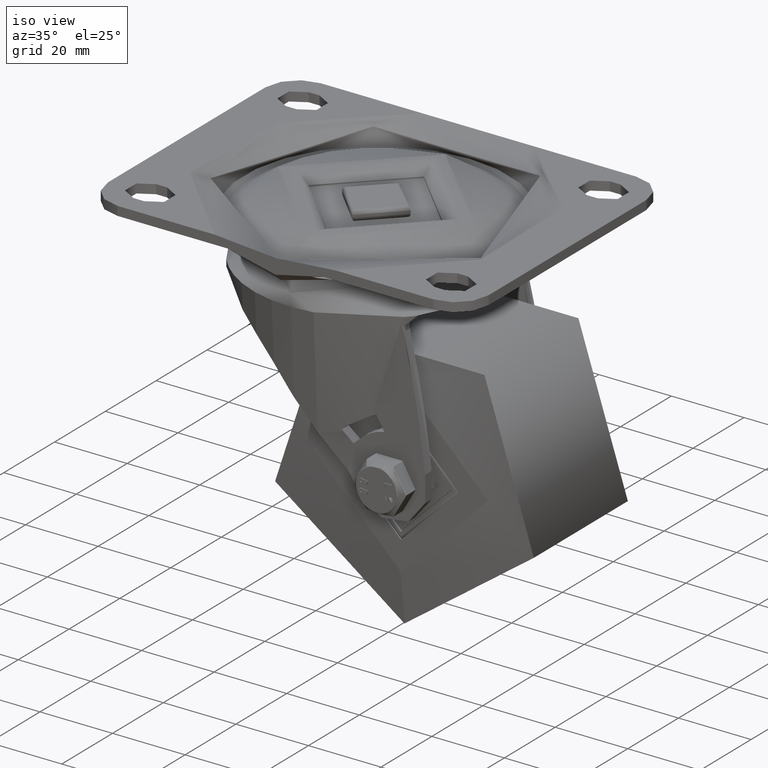
[diagram: clean part render]
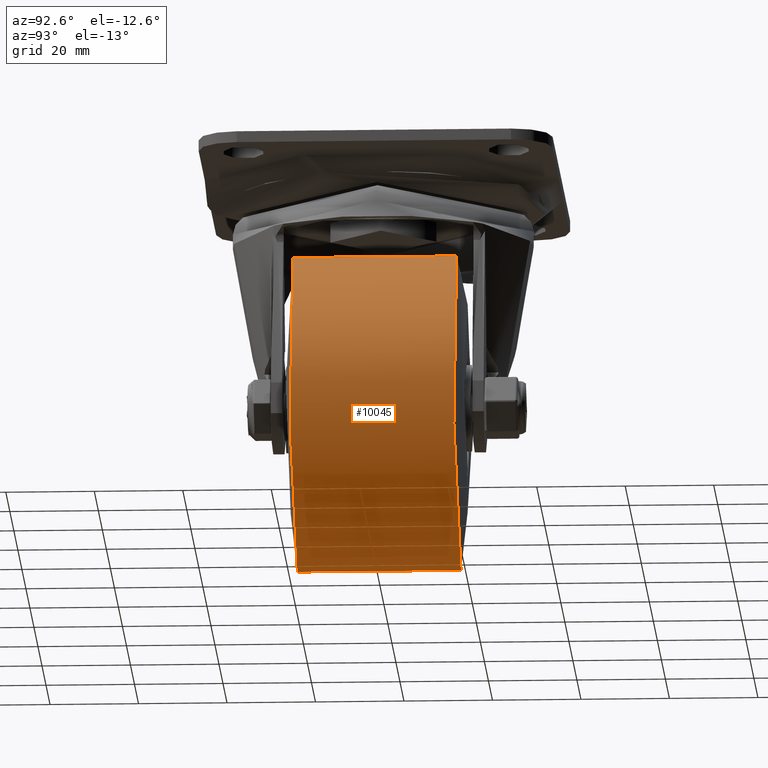
[diagram: tour spotlight — one face highlighted and labeled with its STEP entity id]
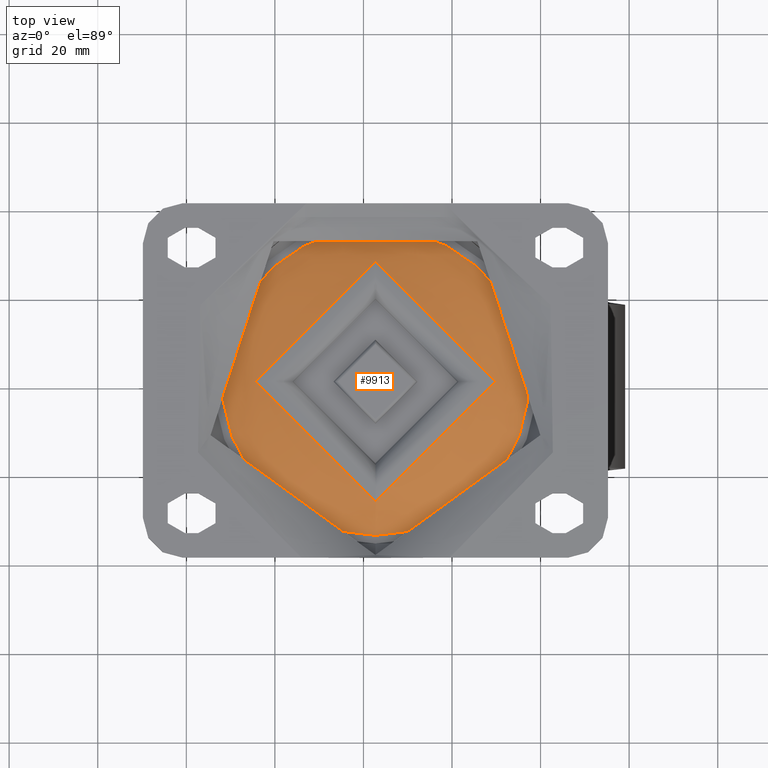
[diagram: tour spotlight — one face highlighted and labeled with its STEP entity id]
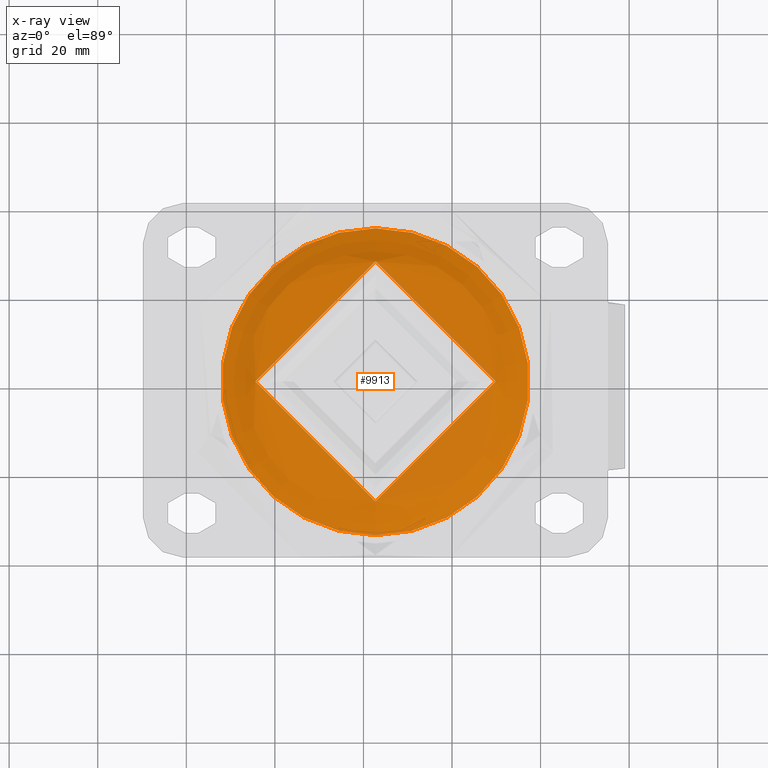
[diagram: x-ray of the same camera — body ghosted, this tour face saturated]
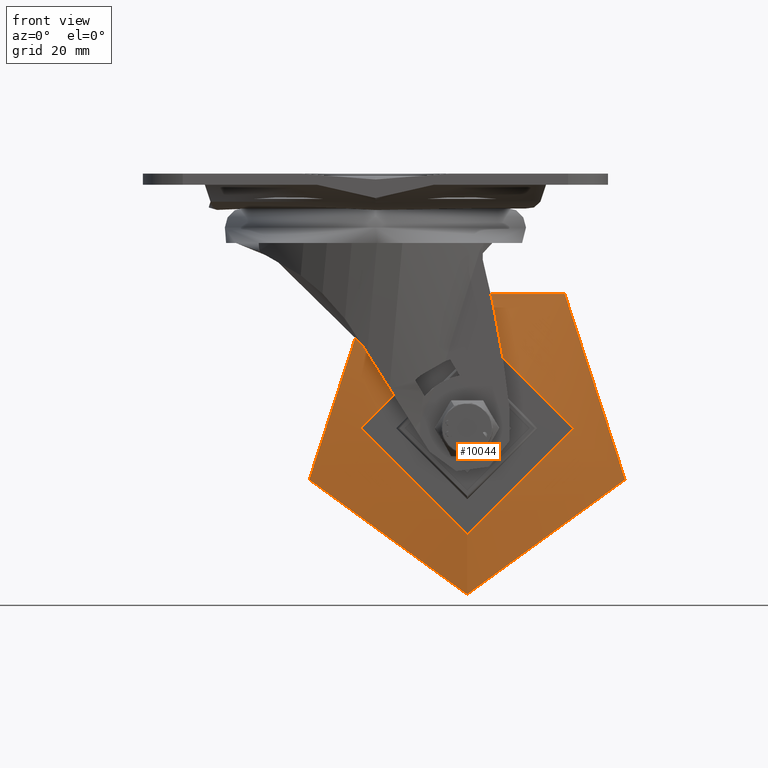
[diagram: tour spotlight — one face highlighted and labeled with its STEP entity id]
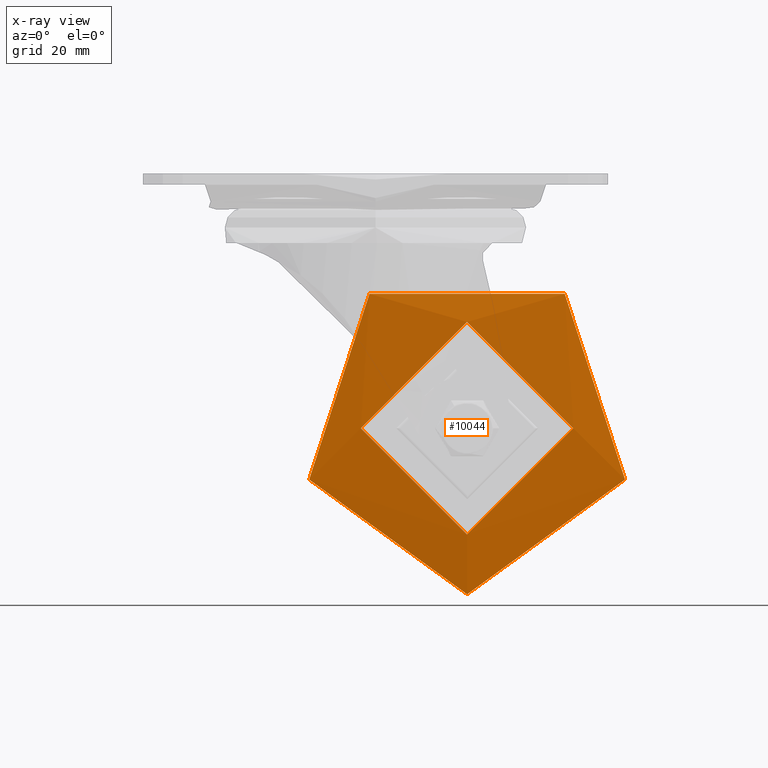
[diagram: x-ray of the same camera — body ghosted, this tour face saturated]
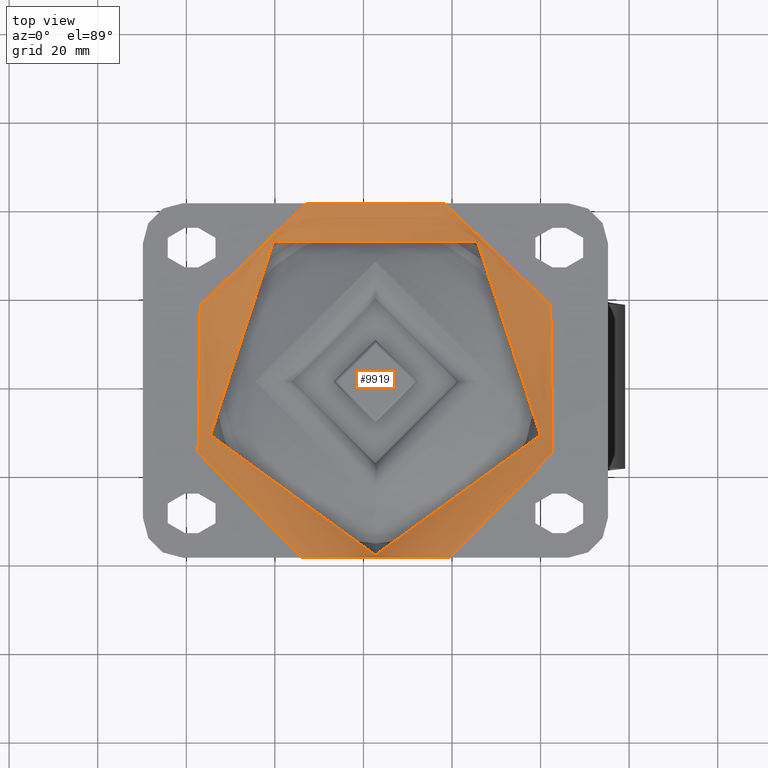
[diagram: tour spotlight — one face highlighted and labeled with its STEP entity id]
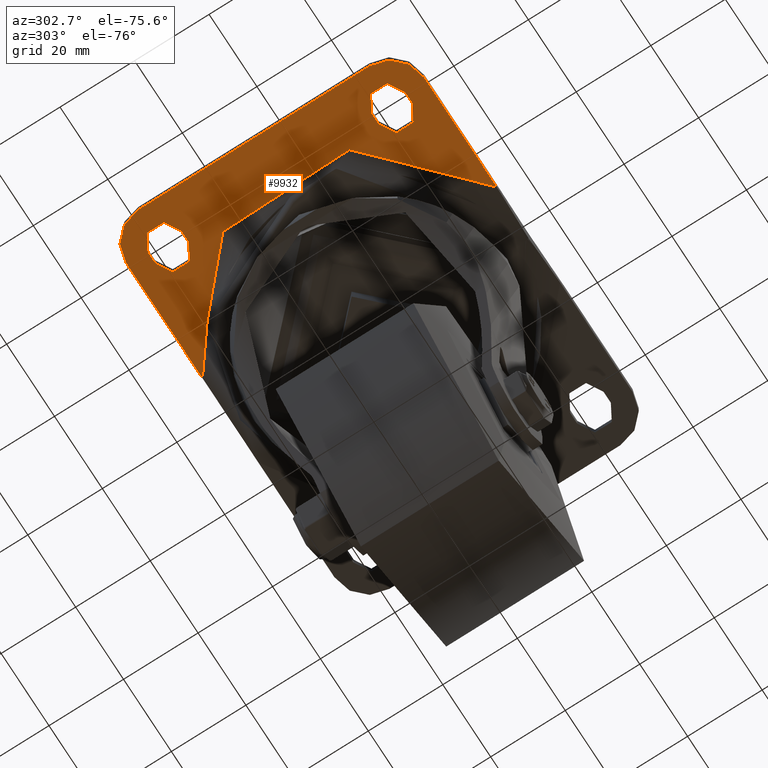
[diagram: tour spotlight — one face highlighted and labeled with its STEP entity id]
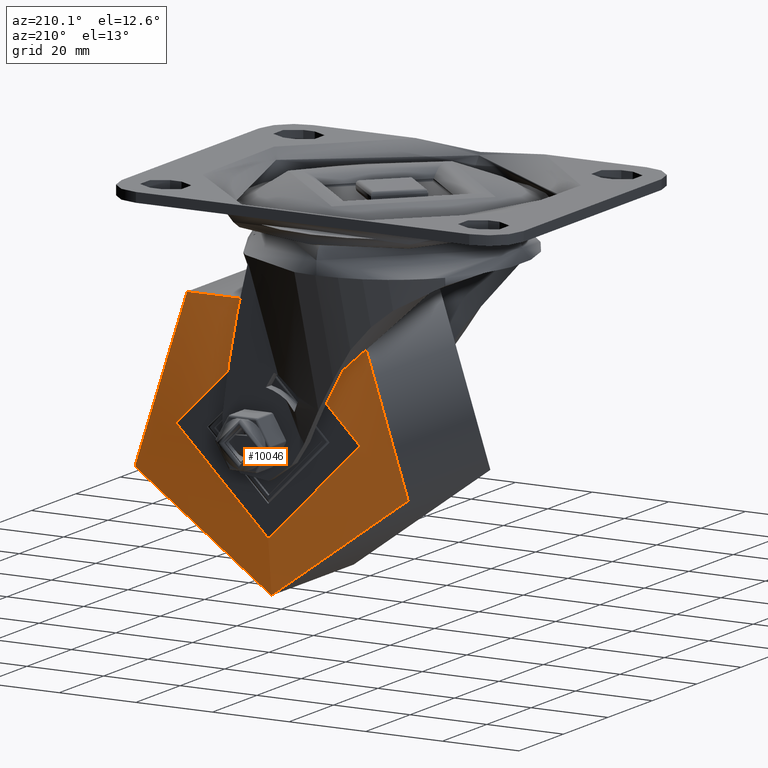
[diagram: tour spotlight — one face highlighted and labeled with its STEP entity id]
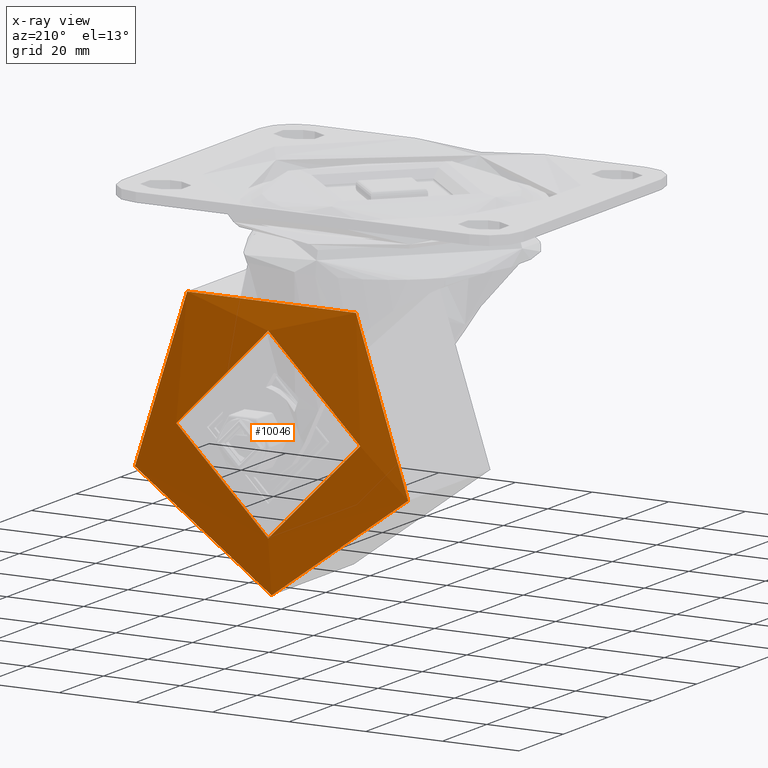
[diagram: x-ray of the same camera — body ghosted, this tour face saturated]
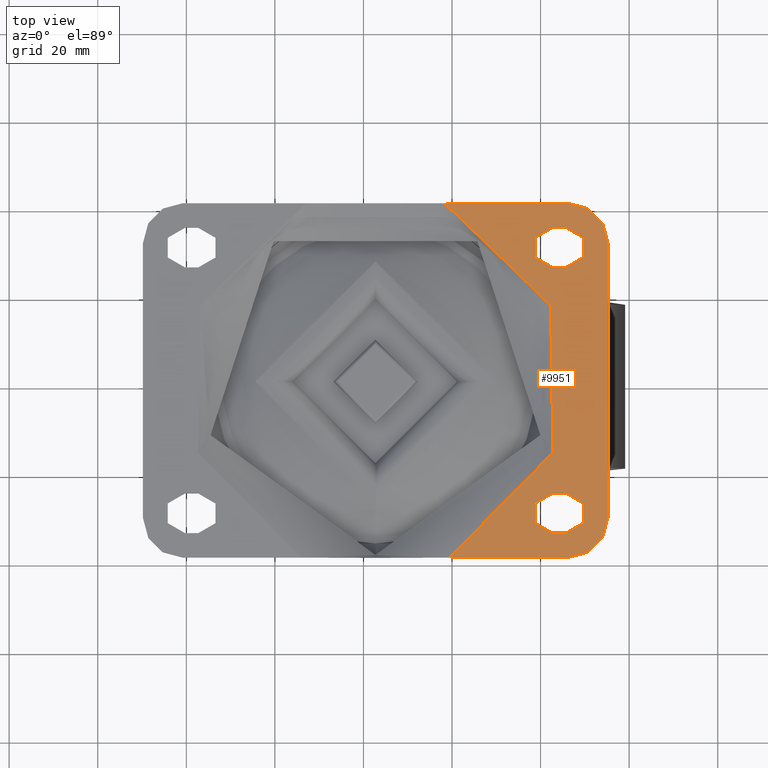
[diagram: tour spotlight — one face highlighted and labeled with its STEP entity id]
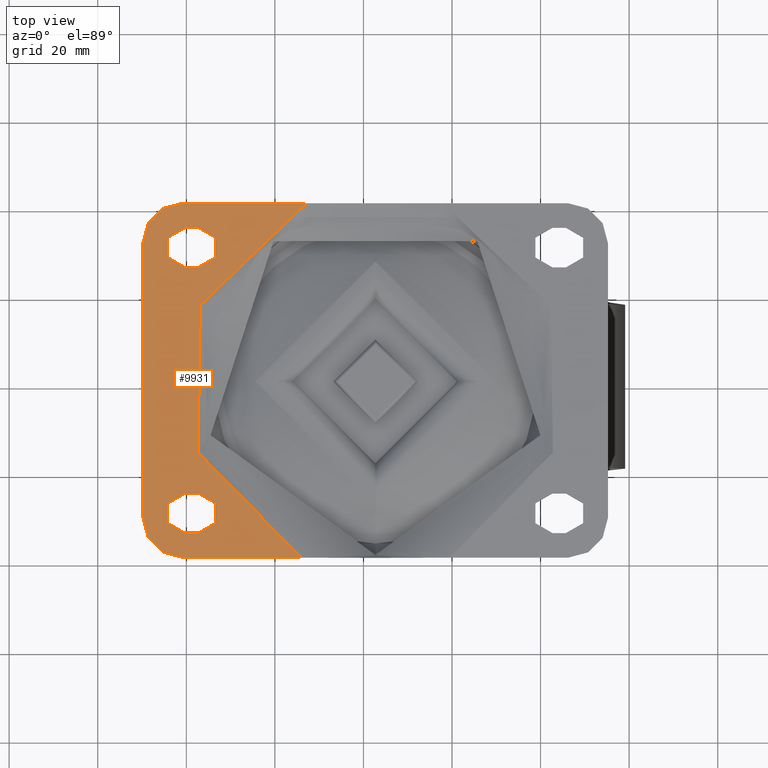
[diagram: tour spotlight — one face highlighted and labeled with its STEP entity id]
A machine part: a face-by-face anatomy tour. The part has 1127 B-rep faces; the first image is the clean iso view, then the 8 largest visible faces are spotlighted one at a time (largest first), each with its STEP entity span.

Face 1 — auxiliary view, entity #10045. In plain terms, the highlighted cylindrical surface (bore or boss wall) has radius 37.5 mm, axis along (0, -1, -0).
Definition (entity closure, byte-faithful):
#1291=CYLINDRICAL_SURFACE('',#10992,37.5);
#1587=LINE('',#16433,#2146);
#2146=VECTOR('',#12498,37.5);
#2705=FACE_OUTER_BOUND('',#3339,.T.);
#3339=EDGE_LOOP('',(#7611,#7612,#7613,#7614));
#4027=CIRCLE('',#10990,37.5);
#4029=CIRCLE('',#10993,37.5);
#4629=VERTEX_POINT('',#16426);
#4631=VERTEX_POINT('',#16432);
#5728=EDGE_CURVE('',#4629,#4629,#4027,.T.);
#5731=EDGE_CURVE('',#4629,#4631,#1587,.T.);
#5732=EDGE_CURVE('',#4631,#4631,#4029,.T.);
#7611=ORIENTED_EDGE('',*,*,#5728,.F.);
#7612=ORIENTED_EDGE('',*,*,#5731,.T.);
#7613=ORIENTED_EDGE('',*,*,#5732,.T.);
#7614=ORIENTED_EDGE('',*,*,#5731,.F.);
#10045=ADVANCED_FACE('',(#2705),#1291,.T.);
#10990=AXIS2_PLACEMENT_3D('',#16427,#12491,#12492);
#10992=AXIS2_PLACEMENT_3D('',#16431,#12496,#12497);
#10993=AXIS2_PLACEMENT_3D('',#16434,#12499,#12500);
#12491=DIRECTION('center_axis',(0.,-1.,0.));
#12492=DIRECTION('ref_axis',(0.,0.,1.));
#12496=DIRECTION('center_axis',(0.,-1.,0.));
#12497=DIRECTION('ref_axis',(0.,0.,1.));
#12498=DIRECTION('',(0.,1.,0.));
#12499=DIRECTION('center_axis',(0.,-1.,0.));
#12500=DIRECTION('ref_axis',(0.,0.,1.));
#16426=CARTESIAN_POINT('',(-4.59242549680257E-15,-18.5,-37.5));
#16427=CARTESIAN_POINT('Origin',(0.,-18.5,0.));
#16431=CARTESIAN_POINT('Origin',(0.,0.,0.));
#16432=CARTESIAN_POINT('',(-4.59242549680257E-15,18.5,-37.5));
#16433=CARTESIAN_POINT('',(4.59242549680258E-15,0.,-37.5));
#16434=CARTESIAN_POINT('Origin',(0.,18.5,0.));

Face 2 — top view, entity #9913. An x-ray twin of the same camera follows (body ghosted, this face saturated) — the face is partly hidden behind the body. In plain terms, the highlighted toroidal blend (fillet) surface has major radius 45.2685 mm and minor (blend) radius 27.7043 mm.
Definition (entity closure, byte-faithful):
#2573=FACE_OUTER_BOUND('',#3185,.T.);
#3185=EDGE_LOOP('',(#6891,#6892,#6893,#6894));
#3906=CIRCLE('',#10736,27.0902471570553);
#3907=CIRCLE('',#10737,27.704341700969);
#3908=CIRCLE('',#10738,34.6679245118185);
#4396=VERTEX_POINT('',#14523);
#4397=VERTEX_POINT('',#14525);
#5372=EDGE_CURVE('',#4396,#4396,#3906,.T.);
#5373=EDGE_CURVE('',#4396,#4397,#3907,.T.);
#5374=EDGE_CURVE('',#4397,#4397,#3908,.T.);
#6891=ORIENTED_EDGE('',*,*,#5372,.F.);
#6892=ORIENTED_EDGE('',*,*,#5373,.T.);
#6893=ORIENTED_EDGE('',*,*,#5374,.T.);
#6894=ORIENTED_EDGE('',*,*,#5373,.F.);
#9890=TOROIDAL_SURFACE('',#10735,45.2685483574106,27.704341700969);
#9913=ADVANCED_FACE('',(#2573),#9890,.F.);
#10735=AXIS2_PLACEMENT_3D('',#14522,#11831,#11832);
#10736=AXIS2_PLACEMENT_3D('',#14524,#11833,#11834);
#10737=AXIS2_PLACEMENT_3D('',#14526,#11835,#11836);
#10738=AXIS2_PLACEMENT_3D('',#14527,#11837,#11838);
#11831=DIRECTION('center_axis',(0.,0.,1.));
#11832=DIRECTION('ref_axis',(1.,0.,0.));
#11833=DIRECTION('center_axis',(0.,0.,1.));
#11834=DIRECTION('ref_axis',(1.,0.,0.));
#11835=DIRECTION('center_axis',(0.,1.,0.));
#11836=DIRECTION('ref_axis',(-1.,0.,0.));
#11837=DIRECTION('center_axis',(0.,0.,1.));
#11838=DIRECTION('ref_axis',(1.,0.,0.));
#14522=CARTESIAN_POINT('Origin',(568.740824994599,-462.775587103942,19.8960411620295));
#14523=CARTESIAN_POINT('',(541.650577837544,-462.775587103942,-1.01041512671561));
#14524=CARTESIAN_POINT('Origin',(568.740824994599,-462.775587103942,-1.01041512671561));
#14525=CARTESIAN_POINT('',(534.072900482781,-462.775587103942,-5.70000000000005));
#14526=CARTESIAN_POINT('Origin',(523.472276637188,-462.775587103942,19.8960411620295));
#14527=CARTESIAN_POINT('Origin',(568.740824994599,-462.775587103942,-5.70000000000005));

Face 3 — front view, entity #10044. An x-ray twin of the same camera follows (body ghosted, this face saturated) — the face is partly hidden behind the body. In plain terms, the highlighted conical surface has half-angle 83.66 deg.
Definition (entity closure, byte-faithful):
#1586=LINE('',#16429,#2145);
#2145=VECTOR('',#12493,30.75);
#2555=CONICAL_SURFACE('',#10989,30.75,1.460139105621);
#2704=FACE_OUTER_BOUND('',#3338,.T.);
#3338=EDGE_LOOP('',(#7607,#7608,#7609,#7610));
#4027=CIRCLE('',#10990,37.5);
#4028=CIRCLE('',#10991,24.);
#4629=VERTEX_POINT('',#16426);
#4630=VERTEX_POINT('',#16428);
#5728=EDGE_CURVE('',#4629,#4629,#4027,.T.);
#5729=EDGE_CURVE('',#4629,#4630,#1586,.T.);
#5730=EDGE_CURVE('',#4630,#4630,#4028,.T.);
#7607=ORIENTED_EDGE('',*,*,#5728,.T.);
#7608=ORIENTED_EDGE('',*,*,#5729,.T.);
#7609=ORIENTED_EDGE('',*,*,#5730,.F.);
#7610=ORIENTED_EDGE('',*,*,#5729,.F.);
#10044=ADVANCED_FACE('',(#2704),#2555,.T.);
#10989=AXIS2_PLACEMENT_3D('',#16425,#12489,#12490);
#10990=AXIS2_PLACEMENT_3D('',#16427,#12491,#12492);
#10991=AXIS2_PLACEMENT_3D('',#16430,#12494,#12495);
#12489=DIRECTION('center_axis',(0.,1.,0.));
#12490=DIRECTION('ref_axis',(0.,0.,1.));
#12491=DIRECTION('center_axis',(0.,-1.,0.));
#12492=DIRECTION('ref_axis',(0.,0.,1.));
#12493=DIRECTION('',(1.21715653439266E-16,-0.110431526074847,0.993883734673619));
#12494=DIRECTION('center_axis',(0.,-1.,0.));
#12495=DIRECTION('ref_axis',(0.,0.,1.));
#16425=CARTESIAN_POINT('Origin',(0.,-19.25,0.));
#16426=CARTESIAN_POINT('',(-4.59242549680257E-15,-18.5,-37.5));
#16427=CARTESIAN_POINT('Origin',(0.,-18.5,0.));
#16428=CARTESIAN_POINT('',(-2.93915231795365E-15,-20.,-24.));
#16429=CARTESIAN_POINT('',(-3.76578890737811E-15,-19.25,-30.75));
#16430=CARTESIAN_POINT('Origin',(0.,-20.,0.));

Face 4 — top view, entity #9919. In plain terms, the highlighted toroidal blend (fillet) surface has major radius 43.1485 mm and minor (blend) radius 5 mm.
Definition (entity closure, byte-faithful):
#813=B_SPLINE_CURVE_WITH_KNOTS('',3,(#14568,#14569,#14570,#14571,#14572,
#14573,#14574,#14575),.UNSPECIFIED.,.F.,.F.,(4,2,2,4),(-7.10806335911513,
-6.59290591768846,-6.06111245325113,-5.52931898881379),.UNSPECIFIED.);
#814=B_SPLINE_CURVE_WITH_KNOTS('',3,(#14579,#14580,#14581,#14582,#14583,
#14584,#14585,#14586,#14587,#14588,#14589,#14590,#14591,#14592),
 .UNSPECIFIED.,.F.,.F.,(4,2,2,2,2,2,4),(3.91852567269638,4.38247986665139,
4.88250855631407,5.38253724597674,5.88256593563942,6.38259462530209,6.84654881925711),
 .UNSPECIFIED.);
#815=B_SPLINE_CURVE_WITH_KNOTS('',3,(#14595,#14596,#14597,#14598,#14599,
#14600,#14601,#14602),.UNSPECIFIED.,.F.,.F.,(4,2,2,4),(-5.52931898881379,
-4.99752552437645,-4.46573205993912,-3.95057461851246),.UNSPECIFIED.);
#2579=FACE_OUTER_BOUND('',#3191,.T.);
#3191=EDGE_LOOP('',(#6919,#6920,#6921,#6922,#6923,#6924,#6925,#6926));
#3905=CIRCLE('',#10734,39.1513501417062);
#3918=CIRCLE('',#10754,4.99999999999997);
#3919=CIRCLE('',#10755,43.1485350824886);
#3920=CIRCLE('',#10756,43.1485350824886);
#4395=VERTEX_POINT('',#14519);
#4408=VERTEX_POINT('',#14565);
#4409=VERTEX_POINT('',#14567);
#4410=VERTEX_POINT('',#14576);
#4411=VERTEX_POINT('',#14578);
#4412=VERTEX_POINT('',#14593);
#5371=EDGE_CURVE('',#4395,#4395,#3905,.T.);
#5390=EDGE_CURVE('',#4395,#4408,#3918,.T.);
#5391=EDGE_CURVE('',#4409,#4408,#813,.T.);
#5392=EDGE_CURVE('',#4409,#4410,#3919,.T.);
#5393=EDGE_CURVE('',#4411,#4410,#814,.F.);
#5394=EDGE_CURVE('',#4412,#4411,#3920,.T.);
#5395=EDGE_CURVE('',#4408,#4412,#815,.T.);
#6919=ORIENTED_EDGE('',*,*,#5371,.F.);
#6920=ORIENTED_EDGE('',*,*,#5390,.T.);
#6921=ORIENTED_EDGE('',*,*,#5391,.F.);
#6922=ORIENTED_EDGE('',*,*,#5392,.T.);
#6923=ORIENTED_EDGE('',*,*,#5393,.F.);
#6924=ORIENTED_EDGE('',*,*,#5394,.F.);
#6925=ORIENTED_EDGE('',*,*,#5395,.F.);
#6926=ORIENTED_EDGE('',*,*,#5390,.F.);
#9893=TOROIDAL_SURFACE('',#10753,43.1485350824886,4.99999999999997);
#9919=ADVANCED_FACE('',(#2579),#9893,.T.);
#10734=AXIS2_PLACEMENT_3D('',#14521,#11829,#11830);
#10753=AXIS2_PLACEMENT_3D('',#14564,#11870,#11871);
#10754=AXIS2_PLACEMENT_3D('',#14566,#11872,#11873);
#10755=AXIS2_PLACEMENT_3D('',#14577,#11874,#11875);
#10756=AXIS2_PLACEMENT_3D('',#14594,#11876,#11877);
#11829=DIRECTION('center_axis',(0.,0.,1.));
#11830=DIRECTION('ref_axis',(1.,0.,0.));
#11870=DIRECTION('center_axis',(0.,0.,1.));
#11871=DIRECTION('ref_axis',(1.,0.,0.));
#11872=DIRECTION('center_axis',(0.,-1.,0.));
#11873=DIRECTION('ref_axis',(-1.,0.,0.));
#11874=DIRECTION('center_axis',(0.,0.,1.));
#11875=DIRECTION('ref_axis',(1.,0.,0.));
#11876=DIRECTION('center_axis',(0.,0.,-1.));
#11877=DIRECTION('ref_axis',(-1.,0.,0.));
#14519=CARTESIAN_POINT('',(529.589474852893,-462.775587103942,-1.99625025190482));
#14521=CARTESIAN_POINT('Origin',(568.740824994599,-462.775587103942,-1.99625025190482));
#14564=CARTESIAN_POINT('Origin',(568.740824994599,-462.775587103942,-5.00000000000012));
#14565=CARTESIAN_POINT('',(528.98065425484,-462.775587103942,-1.32318247924681));
#14566=CARTESIAN_POINT('Origin',(525.59228991211,-462.775587103942,-5.00000000000012));
#14567=CARTESIAN_POINT('',(528.98065425484,-479.536401598171,-1.14491749414469E-13));
#14568=CARTESIAN_POINT('Ctrl Pts',(528.98065425484,-479.536401598171,-1.49880108324396E-13));
#14569=CARTESIAN_POINT('Ctrl Pts',(528.98065425484,-477.819210126749,-1.48654374385286E-13));
#14570=CARTESIAN_POINT('Ctrl Pts',(528.98065425484,-475.764841449988,-0.160512838297767));
#14571=CARTESIAN_POINT('Ctrl Pts',(528.98065425484,-472.294664874623,-0.530421348165077));
#14572=CARTESIAN_POINT('Ctrl Pts',(528.98065425484,-470.361913953468,-0.788579001646508));
#14573=CARTESIAN_POINT('Ctrl Pts',(528.98065425484,-466.489719236222,-1.19481938771826));
#14574=CARTESIAN_POINT('Ctrl Pts',(528.98065425484,-464.5482319854,-1.32318247924681));
#14575=CARTESIAN_POINT('Ctrl Pts',(528.98065425484,-462.775587103942,-1.32318247924681));
#14576=CARTESIAN_POINT('',(608.98065425484,-478.349675227213,-1.14491749414469E-13));
#14577=CARTESIAN_POINT('Origin',(568.740824994599,-462.775587103942,-1.13624387676481E-13));
#14578=CARTESIAN_POINT('',(608.98065425484,-447.201498980672,-1.14491749414469E-13));
#14579=CARTESIAN_POINT('Ctrl Pts',(608.98065425484,-478.349675227213,-1.49880108324396E-13));
#14580=CARTESIAN_POINT('Ctrl Pts',(608.98065425484,-476.803161247363,-1.52659462299012E-13));
#14581=CARTESIAN_POINT('Ctrl Pts',(608.98065425484,-474.950767284053,-0.112661040784901));
#14582=CARTESIAN_POINT('Ctrl Pts',(608.98065425484,-471.748230221187,-0.37515066798583));
#14583=CARTESIAN_POINT('Ctrl Pts',(608.98065425484,-469.924145968375,-0.561432565811661));
#14584=CARTESIAN_POINT('Ctrl Pts',(608.98065425484,-466.271685029772,-0.846630739842544));
#14585=CARTESIAN_POINT('Ctrl Pts',(608.98065425484,-464.442349402818,-0.933130142281186));
#14586=CARTESIAN_POINT('Ctrl Pts',(608.98065425484,-461.108824805066,-0.933130142281186));
#14587=CARTESIAN_POINT('Ctrl Pts',(608.98065425484,-459.279489178112,-0.846630739842544));
#14588=CARTESIAN_POINT('Ctrl Pts',(608.98065425484,-455.62702823951,-0.561432565811662));
#14589=CARTESIAN_POINT('Ctrl Pts',(608.98065425484,-453.802943986697,-0.37515066798583));
#14590=CARTESIAN_POINT('Ctrl Pts',(608.98065425484,-450.600406923831,-0.112661040784901));
#14591=CARTESIAN_POINT('Ctrl Pts',(608.98065425484,-448.748012960521,-1.49880108324396E-13));
#14592=CARTESIAN_POINT('Ctrl Pts',(608.98065425484,-447.201498980671,-1.49880108324396E-13));
#14593=CARTESIAN_POINT('',(528.98065425484,-446.014772609713,-1.14491749414469E-13));
#14594=CARTESIAN_POINT('Origin',(568.740824994599,-462.775587103942,-1.14491749414469E-13));
#14595=CARTESIAN_POINT('Ctrl Pts',(528.98065425484,-462.775587103942,-1.32318247924681));
#14596=CARTESIAN_POINT('Ctrl Pts',(528.98065425484,-461.002942222484,-1.32318247924681));
#14597=CARTESIAN_POINT('Ctrl Pts',(528.98065425484,-459.061454971662,-1.19481938771826));
#14598=CARTESIAN_POINT('Ctrl Pts',(528.98065425484,-455.189260254416,-0.788579001646508));
#14599=CARTESIAN_POINT('Ctrl Pts',(528.98065425484,-453.256509333261,-0.530421348165077));
#14600=CARTESIAN_POINT('Ctrl Pts',(528.98065425484,-449.786332757896,-0.160512838297767));
#14601=CARTESIAN_POINT('Ctrl Pts',(528.98065425484,-447.731964081135,-1.48354935916986E-13));
#14602=CARTESIAN_POINT('Ctrl Pts',(528.98065425484,-446.014772609713,-1.49880108324396E-13));

Face 5 — auxiliary view, entity #9932. In plain terms, the highlighted planar face has unit normal (-0, 0, -1).
Definition (entity closure, byte-faithful):
#498=FACE_BOUND('',#3207,.T.);
#499=FACE_BOUND('',#3208,.T.);
#604=PLANE('',#10781);
#1441=LINE('',#14610,#2000);
#1446=LINE('',#14623,#2005);
#1449=LINE('',#14634,#2008);
#1454=LINE('',#14647,#2013);
#1459=LINE('',#14665,#2018);
#1463=LINE('',#14676,#2022);
#1464=LINE('',#14677,#2023);
#2000=VECTOR('',#11882,1.);
#2005=VECTOR('',#11895,1.);
#2008=VECTOR('',#11906,1.);
#2013=VECTOR('',#11919,1.);
#2018=VECTOR('',#11938,1.);
#2022=VECTOR('',#11952,1.);
#2023=VECTOR('',#11953,1.);
#2592=FACE_OUTER_BOUND('',#3206,.T.);
#3206=EDGE_LOOP('',(#6985,#6986,#6987,#6988,#6989,#6990));
#3207=EDGE_LOOP('',(#6991,#6992,#6993,#6994));
#3208=EDGE_LOOP('',(#6995,#6996,#6997,#6998));
#3916=CIRCLE('',#10751,41.9);
#3922=CIRCLE('',#10760,4.5);
#3924=CIRCLE('',#10764,4.5);
#3926=CIRCLE('',#10768,4.5);
#3928=CIRCLE('',#10772,4.5);
#3930=CIRCLE('',#10775,9.);
#3932=CIRCLE('',#10779,9.);
#4403=VERTEX_POINT('',#14547);
#4405=VERTEX_POINT('',#14552);
#4415=VERTEX_POINT('',#14607);
#4416=VERTEX_POINT('',#14609);
#4418=VERTEX_POINT('',#14615);
#4420=VERTEX_POINT('',#14621);
#4423=VERTEX_POINT('',#14631);
#4424=VERTEX_POINT('',#14633);
#4426=VERTEX_POINT('',#14639);
#4428=VERTEX_POINT('',#14645);
#4431=VERTEX_POINT('',#14655);
#4432=VERTEX_POINT('',#14657);
#4434=VERTEX_POINT('',#14663);
#4436=VERTEX_POINT('',#14669);
#5385=EDGE_CURVE('',#4405,#4403,#3916,.T.);
#5398=EDGE_CURVE('',#4415,#4416,#1441,.T.);
#5402=EDGE_CURVE('',#4418,#4415,#3922,.T.);
#5405=EDGE_CURVE('',#4420,#4418,#1446,.T.);
#5407=EDGE_CURVE('',#4416,#4420,#3924,.T.);
#5410=EDGE_CURVE('',#4423,#4424,#1449,.T.);
#5414=EDGE_CURVE('',#4426,#4423,#3926,.T.);
#5417=EDGE_CURVE('',#4428,#4426,#1454,.T.);
#5419=EDGE_CURVE('',#4424,#4428,#3928,.T.);
#5422=EDGE_CURVE('',#4432,#4431,#3930,.T.);
#5426=EDGE_CURVE('',#4431,#4434,#1459,.T.);
#5429=EDGE_CURVE('',#4434,#4436,#3932,.T.);
#5432=EDGE_CURVE('',#4436,#4405,#1463,.T.);
#5433=EDGE_CURVE('',#4403,#4432,#1464,.T.);
#6985=ORIENTED_EDGE('',*,*,#5432,.T.);
#6986=ORIENTED_EDGE('',*,*,#5385,.T.);
#6987=ORIENTED_EDGE('',*,*,#5433,.T.);
#6988=ORIENTED_EDGE('',*,*,#5422,.T.);
#6989=ORIENTED_EDGE('',*,*,#5426,.T.);
#6990=ORIENTED_EDGE('',*,*,#5429,.T.);
#6991=ORIENTED_EDGE('',*,*,#5419,.F.);
#6992=ORIENTED_EDGE('',*,*,#5410,.F.);
#6993=ORIENTED_EDGE('',*,*,#5414,.F.);
#6994=ORIENTED_EDGE('',*,*,#5417,.F.);
#6995=ORIENTED_EDGE('',*,*,#5407,.F.);
#6996=ORIENTED_EDGE('',*,*,#5398,.F.);
#6997=ORIENTED_EDGE('',*,*,#5402,.F.);
#6998=ORIENTED_EDGE('',*,*,#5405,.F.);
#9932=ADVANCED_FACE('',(#2592,#498,#499),#604,.T.);
#10751=AXIS2_PLACEMENT_3D('',#14553,#11865,#11866);
#10760=AXIS2_PLACEMENT_3D('',#14617,#11889,#11890);
#10764=AXIS2_PLACEMENT_3D('',#14626,#11900,#11901);
#10768=AXIS2_PLACEMENT_3D('',#14641,#11913,#11914);
#10772=AXIS2_PLACEMENT_3D('',#14650,#11924,#11925);
#10775=AXIS2_PLACEMENT_3D('',#14658,#11931,#11932);
#10779=AXIS2_PLACEMENT_3D('',#14671,#11944,#11945);
#10781=AXIS2_PLACEMENT_3D('',#14675,#11950,#11951);
#11865=DIRECTION('center_axis',(0.,0.,1.));
#11866=DIRECTION('ref_axis',(1.,0.,0.));
#11882=DIRECTION('',(0.,1.,0.));
#11889=DIRECTION('center_axis',(0.,0.,-1.));
#11890=DIRECTION('ref_axis',(1.,0.,0.));
#11895=DIRECTION('',(0.,-1.,0.));
#11900=DIRECTION('center_axis',(0.,0.,-1.));
#11901=DIRECTION('ref_axis',(1.,0.,0.));
#11906=DIRECTION('',(0.,1.,0.));
#11913=DIRECTION('center_axis',(0.,0.,-1.));
#11914=DIRECTION('ref_axis',(1.,0.,0.));
#11919=DIRECTION('',(0.,-1.,0.));
#11924=DIRECTION('center_axis',(0.,0.,-1.));
#11925=DIRECTION('ref_axis',(1.,0.,0.));
#11931=DIRECTION('center_axis',(0.,0.,-1.));
#11932=DIRECTION('ref_axis',(1.,0.,0.));
#11938=DIRECTION('',(1.,1.79068229778251E-15,0.));
#11944=DIRECTION('center_axis',(0.,0.,-1.));
#11945=DIRECTION('ref_axis',(1.,0.,0.));
#11950=DIRECTION('center_axis',(0.,0.,-1.));
#11951=DIRECTION('ref_axis',(0.,-1.,0.));
#11952=DIRECTION('',(0.,-1.,0.));
#11953=DIRECTION('',(0.,1.,0.));
#14547=CARTESIAN_POINT('',(528.980654255396,-449.556705808012,-2.49999999851909));
#14552=CARTESIAN_POINT('',(608.980654254329,-451.097995696732,-2.49999999848761));
#14553=CARTESIAN_POINT('Origin',(568.740824994599,-462.775587103942,-2.50000000000011));
#14607=CARTESIAN_POINT('',(534.48065425484,-422.775587103942,-2.50000000000011));
#14609=CARTESIAN_POINT('',(534.48065425484,-419.775587103942,-2.50000000000011));
#14610=CARTESIAN_POINT('',(534.48065425484,-422.775587103942,-2.50000000000011));
#14615=CARTESIAN_POINT('',(543.48065425484,-422.775587103942,-2.50000000000011));
#14617=CARTESIAN_POINT('Origin',(538.98065425484,-422.775587103942,-2.50000000000011));
#14621=CARTESIAN_POINT('',(543.48065425484,-419.775587103942,-2.50000000000011));
#14623=CARTESIAN_POINT('',(543.48065425484,-419.775587103942,-2.50000000000011));
#14626=CARTESIAN_POINT('Origin',(538.98065425484,-419.775587103942,-2.50000000000011));
#14631=CARTESIAN_POINT('',(594.48065425484,-422.775587103942,-2.50000000000011));
#14633=CARTESIAN_POINT('',(594.48065425484,-419.775587103942,-2.50000000000011));
#14634=CARTESIAN_POINT('',(594.48065425484,-422.775587103942,-2.50000000000011));
#14639=CARTESIAN_POINT('',(603.48065425484,-422.775587103942,-2.50000000000011));
#14641=CARTESIAN_POINT('Origin',(598.98065425484,-422.775587103942,-2.50000000000011));
#14645=CARTESIAN_POINT('',(603.48065425484,-419.775587103942,-2.50000000000011));
#14647=CARTESIAN_POINT('',(603.48065425484,-419.775587103942,-2.50000000000011));
#14650=CARTESIAN_POINT('Origin',(598.98065425484,-419.775587103942,-2.50000000000011));
#14655=CARTESIAN_POINT('',(537.98065425484,-410.275587103942,-2.50000000000011));
#14657=CARTESIAN_POINT('',(528.98065425484,-419.275587103942,-2.50000000000011));
#14658=CARTESIAN_POINT('Origin',(537.98065425484,-419.275587103942,-2.50000000000011));
#14663=CARTESIAN_POINT('',(599.98065425484,-410.275587103942,-2.50000000000011));
#14665=CARTESIAN_POINT('',(537.98065425484,-410.275587103942,-2.50000000000011));
#14669=CARTESIAN_POINT('',(608.98065425484,-419.275587103942,-2.50000000000011));
#14671=CARTESIAN_POINT('Origin',(599.98065425484,-419.275587103942,-2.50000000000011));
#14675=CARTESIAN_POINT('Origin',(599.98065425484,-419.275587103942,-2.50000000000011));
#14676=CARTESIAN_POINT('',(608.98065425484,-419.275587103942,-2.50000000000011));
#14677=CARTESIAN_POINT('',(528.98065425484,-506.275587103942,-2.50000000000011));

Face 6 — auxiliary view, entity #10046. An x-ray twin of the same camera follows (body ghosted, this face saturated) — the face is partly hidden behind the body. In plain terms, the highlighted conical surface has half-angle 83.66 deg.
Definition (entity closure, byte-faithful):
#1588=LINE('',#16437,#2147);
#2147=VECTOR('',#12503,30.75);
#2556=CONICAL_SURFACE('',#10994,30.75,1.460139105621);
#2706=FACE_OUTER_BOUND('',#3340,.T.);
#3340=EDGE_LOOP('',(#7615,#7616,#7617,#7618));
#4029=CIRCLE('',#10993,37.5);
#4030=CIRCLE('',#10995,24.);
#4631=VERTEX_POINT('',#16432);
#4632=VERTEX_POINT('',#16436);
#5732=EDGE_CURVE('',#4631,#4631,#4029,.T.);
#5733=EDGE_CURVE('',#4631,#4632,#1588,.T.);
#5734=EDGE_CURVE('',#4632,#4632,#4030,.T.);
#7615=ORIENTED_EDGE('',*,*,#5732,.F.);
#7616=ORIENTED_EDGE('',*,*,#5733,.T.);
#7617=ORIENTED_EDGE('',*,*,#5734,.T.);
#7618=ORIENTED_EDGE('',*,*,#5733,.F.);
#10046=ADVANCED_FACE('',(#2706),#2556,.T.);
#10993=AXIS2_PLACEMENT_3D('',#16434,#12499,#12500);
#10994=AXIS2_PLACEMENT_3D('',#16435,#12501,#12502);
#10995=AXIS2_PLACEMENT_3D('',#16438,#12504,#12505);
#12499=DIRECTION('center_axis',(0.,-1.,0.));
#12500=DIRECTION('ref_axis',(0.,0.,1.));
#12501=DIRECTION('center_axis',(0.,-1.,0.));
#12502=DIRECTION('ref_axis',(0.,0.,1.));
#12503=DIRECTION('',(-1.21715653439266E-16,0.110431526074847,0.993883734673619));
#12504=DIRECTION('center_axis',(0.,-1.,0.));
#12505=DIRECTION('ref_axis',(0.,0.,1.));
#16432=CARTESIAN_POINT('',(-4.59242549680257E-15,18.5,-37.5));
#16434=CARTESIAN_POINT('Origin',(0.,18.5,0.));
#16435=CARTESIAN_POINT('Origin',(0.,19.25,0.));
#16436=CARTESIAN_POINT('',(-2.93915231795365E-15,20.,-24.));
#16437=CARTESIAN_POINT('',(3.76578890737811E-15,19.25,-30.75));
#16438=CARTESIAN_POINT('Origin',(0.,20.,0.));

Face 7 — top view, entity #9951. In plain terms, the highlighted planar face has unit normal (-0, 0, -1).
Definition (entity closure, byte-faithful):
#504=FACE_BOUND('',#3232,.T.);
#505=FACE_BOUND('',#3233,.T.);
#617=PLANE('',#10812);
#1467=LINE('',#14683,#2026);
#1468=LINE('',#14686,#2027);
#1477=LINE('',#14722,#2036);
#1481=LINE('',#14734,#2040);
#1484=LINE('',#14741,#2043);
#1487=LINE('',#14750,#2046);
#1490=LINE('',#14757,#2049);
#2026=VECTOR('',#11958,1.);
#2027=VECTOR('',#11961,1.);
#2036=VECTOR('',#11998,1.);
#2040=VECTOR('',#12012,1.);
#2043=VECTOR('',#12021,1.);
#2046=VECTOR('',#12030,1.);
#2049=VECTOR('',#12039,1.);
#2611=FACE_OUTER_BOUND('',#3231,.T.);
#3231=EDGE_LOOP('',(#7081,#7082,#7083,#7084,#7085,#7086));
#3232=EDGE_LOOP('',(#7087,#7088,#7089,#7090));
#3233=EDGE_LOOP('',(#7091,#7092,#7093,#7094));
#3919=CIRCLE('',#10755,43.1485350824886);
#3939=CIRCLE('',#10796,9.00000000000006);
#3940=CIRCLE('',#10799,9.);
#3941=CIRCLE('',#10801,4.5);
#3942=CIRCLE('',#10804,4.5);
#3943=CIRCLE('',#10807,4.5);
#3944=CIRCLE('',#10810,4.5);
#4409=VERTEX_POINT('',#14567);
#4410=VERTEX_POINT('',#14576);
#4438=VERTEX_POINT('',#14681);
#4439=VERTEX_POINT('',#14685);
#4451=VERTEX_POINT('',#14717);
#4452=VERTEX_POINT('',#14721);
#4453=VERTEX_POINT('',#14727);
#4454=VERTEX_POINT('',#14728);
#4455=VERTEX_POINT('',#14733);
#4456=VERTEX_POINT('',#14737);
#4457=VERTEX_POINT('',#14743);
#4458=VERTEX_POINT('',#14744);
#4459=VERTEX_POINT('',#14749);
#4460=VERTEX_POINT('',#14753);
#5392=EDGE_CURVE('',#4409,#4410,#3919,.T.);
#5436=EDGE_CURVE('',#4438,#4409,#1467,.T.);
#5437=EDGE_CURVE('',#4410,#4439,#1468,.T.);
#5451=EDGE_CURVE('',#4439,#4451,#3939,.T.);
#5453=EDGE_CURVE('',#4451,#4452,#1477,.T.);
#5455=EDGE_CURVE('',#4452,#4438,#3940,.T.);
#5456=EDGE_CURVE('',#4453,#4454,#3941,.T.);
#5459=EDGE_CURVE('',#4455,#4453,#1481,.T.);
#5461=EDGE_CURVE('',#4456,#4455,#3942,.T.);
#5463=EDGE_CURVE('',#4454,#4456,#1484,.T.);
#5464=EDGE_CURVE('',#4457,#4458,#3943,.T.);
#5467=EDGE_CURVE('',#4458,#4459,#1487,.T.);
#5469=EDGE_CURVE('',#4459,#4460,#3944,.T.);
#5471=EDGE_CURVE('',#4460,#4457,#1490,.T.);
#7081=ORIENTED_EDGE('',*,*,#5437,.F.);
#7082=ORIENTED_EDGE('',*,*,#5392,.F.);
#7083=ORIENTED_EDGE('',*,*,#5436,.F.);
#7084=ORIENTED_EDGE('',*,*,#5455,.F.);
#7085=ORIENTED_EDGE('',*,*,#5453,.F.);
#7086=ORIENTED_EDGE('',*,*,#5451,.F.);
#7087=ORIENTED_EDGE('',*,*,#5471,.F.);
#7088=ORIENTED_EDGE('',*,*,#5469,.F.);
#7089=ORIENTED_EDGE('',*,*,#5467,.F.);
#7090=ORIENTED_EDGE('',*,*,#5464,.F.);
#7091=ORIENTED_EDGE('',*,*,#5463,.T.);
#7092=ORIENTED_EDGE('',*,*,#5461,.T.);
#7093=ORIENTED_EDGE('',*,*,#5459,.T.);
#7094=ORIENTED_EDGE('',*,*,#5456,.T.);
#9951=ADVANCED_FACE('',(#2611,#504,#505),#617,.F.);
#10755=AXIS2_PLACEMENT_3D('',#14577,#11874,#11875);
#10796=AXIS2_PLACEMENT_3D('',#14718,#11993,#11994);
#10799=AXIS2_PLACEMENT_3D('',#14725,#12002,#12003);
#10801=AXIS2_PLACEMENT_3D('',#14729,#12006,#12007);
#10804=AXIS2_PLACEMENT_3D('',#14738,#12016,#12017);
#10807=AXIS2_PLACEMENT_3D('',#14745,#12024,#12025);
#10810=AXIS2_PLACEMENT_3D('',#14754,#12034,#12035);
#10812=AXIS2_PLACEMENT_3D('',#14758,#12040,#12041);
#11874=DIRECTION('center_axis',(0.,0.,1.));
#11875=DIRECTION('ref_axis',(1.,0.,0.));
#11958=DIRECTION('',(0.,1.,0.));
#11961=DIRECTION('',(0.,-1.,0.));
#11993=DIRECTION('center_axis',(0.,0.,-1.));
#11994=DIRECTION('ref_axis',(1.,0.,0.));
#11998=DIRECTION('',(-1.,0.,0.));
#12002=DIRECTION('center_axis',(0.,0.,-1.));
#12003=DIRECTION('ref_axis',(1.,0.,0.));
#12006=DIRECTION('center_axis',(0.,0.,-1.));
#12007=DIRECTION('ref_axis',(1.,0.,0.));
#12012=DIRECTION('',(0.,1.,0.));
#12016=DIRECTION('center_axis',(0.,0.,-1.));
#12017=DIRECTION('ref_axis',(1.,0.,0.));
#12021=DIRECTION('',(0.,-1.,0.));
#12024=DIRECTION('center_axis',(0.,0.,1.));
#12025=DIRECTION('ref_axis',(1.,0.,0.));
#12030=DIRECTION('',(0.,1.,0.));
#12034=DIRECTION('center_axis',(0.,0.,1.));
#12035=DIRECTION('ref_axis',(1.,0.,0.));
#12039=DIRECTION('',(0.,-1.,0.));
#12040=DIRECTION('center_axis',(0.,0.,-1.));
#12041=DIRECTION('ref_axis',(0.,-1.,0.));
#14567=CARTESIAN_POINT('',(528.98065425484,-479.536401598171,-1.14491749414469E-13));
#14576=CARTESIAN_POINT('',(608.98065425484,-478.349675227213,-1.14491749414469E-13));
#14577=CARTESIAN_POINT('Origin',(568.740824994599,-462.775587103942,-1.13624387676481E-13));
#14681=CARTESIAN_POINT('',(528.98065425484,-506.275587103942,-1.13624387676481E-13));
#14683=CARTESIAN_POINT('',(528.98065425484,-506.275587103942,-1.13624387676481E-13));
#14685=CARTESIAN_POINT('',(608.98065425484,-506.275587103942,-1.13624387676481E-13));
#14686=CARTESIAN_POINT('',(608.98065425484,-419.275587103942,-1.13624387676481E-13));
#14717=CARTESIAN_POINT('',(599.98065425484,-515.275587103942,-1.13624387676481E-13));
#14718=CARTESIAN_POINT('Origin',(599.98065425484,-506.275587103942,-1.13624387676481E-13));
#14721=CARTESIAN_POINT('',(537.98065425484,-515.275587103942,-1.13624387676481E-13));
#14722=CARTESIAN_POINT('',(599.98065425484,-515.275587103942,-1.13624387676481E-13));
#14725=CARTESIAN_POINT('Origin',(537.98065425484,-506.275587103942,-1.13624387676481E-13));
#14727=CARTESIAN_POINT('',(594.48065425484,-502.775587103942,-1.13624387676481E-13));
#14728=CARTESIAN_POINT('',(603.48065425484,-502.775587103942,-1.13624387676481E-13));
#14729=CARTESIAN_POINT('Origin',(598.98065425484,-502.775587103942,-1.13624387676481E-13));
#14733=CARTESIAN_POINT('',(594.48065425484,-505.775587103942,-1.13624387676481E-13));
#14734=CARTESIAN_POINT('',(594.48065425484,-505.775587103942,-1.13624387676481E-13));
#14737=CARTESIAN_POINT('',(603.48065425484,-505.775587103942,-1.13624387676481E-13));
#14738=CARTESIAN_POINT('Origin',(598.98065425484,-505.775587103942,-1.13624387676481E-13));
#14741=CARTESIAN_POINT('',(603.48065425484,-502.775587103942,-1.13624387676481E-13));
#14743=CARTESIAN_POINT('',(534.48065425484,-505.775587103942,-1.13624387676481E-13));
#14744=CARTESIAN_POINT('',(543.48065425484,-505.775587103942,-1.13624387676481E-13));
#14745=CARTESIAN_POINT('Origin',(538.98065425484,-505.775587103942,-1.13624387676481E-13));
#14749=CARTESIAN_POINT('',(543.48065425484,-502.775587103942,-1.13624387676481E-13));
#14750=CARTESIAN_POINT('',(543.48065425484,-505.775587103942,-1.13624387676481E-13));
#14753=CARTESIAN_POINT('',(534.48065425484,-502.775587103942,-1.13624387676481E-13));
#14754=CARTESIAN_POINT('Origin',(538.98065425484,-502.775587103942,-1.13624387676481E-13));
#14757=CARTESIAN_POINT('',(534.48065425484,-502.775587103942,-1.13624387676481E-13));
#14758=CARTESIAN_POINT('Origin',(599.98065425484,-419.275587103942,-1.13624387676481E-13));

Face 8 — top view, entity #9931. In plain terms, the highlighted planar face has unit normal (-0, 0, -1).
Definition (entity closure, byte-faithful):
#496=FACE_BOUND('',#3204,.T.);
#497=FACE_BOUND('',#3205,.T.);
#603=PLANE('',#10780);
#1439=LINE('',#14606,#1998);
#1444=LINE('',#14620,#2003);
#1447=LINE('',#14630,#2006);
#1452=LINE('',#14644,#2011);
#1457=LINE('',#14662,#2016);
#1461=LINE('',#14673,#2020);
#1462=LINE('',#14674,#2021);
#1998=VECTOR('',#11880,1.);
#2003=VECTOR('',#11893,1.);
#2006=VECTOR('',#11904,1.);
#2011=VECTOR('',#11917,1.);
#2016=VECTOR('',#11936,1.);
#2020=VECTOR('',#11948,1.);
#2021=VECTOR('',#11949,1.);
#2591=FACE_OUTER_BOUND('',#3203,.T.);
#3203=EDGE_LOOP('',(#6971,#6972,#6973,#6974,#6975,#6976));
#3204=EDGE_LOOP('',(#6977,#6978,#6979,#6980));
#3205=EDGE_LOOP('',(#6981,#6982,#6983,#6984));
#3920=CIRCLE('',#10756,43.1485350824886);
#3921=CIRCLE('',#10759,4.5);
#3923=CIRCLE('',#10763,4.5);
#3925=CIRCLE('',#10767,4.5);
#3927=CIRCLE('',#10771,4.5);
#3929=CIRCLE('',#10774,9.);
#3931=CIRCLE('',#10778,9.);
#4411=VERTEX_POINT('',#14578);
#4412=VERTEX_POINT('',#14593);
#4413=VERTEX_POINT('',#14604);
#4414=VERTEX_POINT('',#14605);
#4417=VERTEX_POINT('',#14613);
#4419=VERTEX_POINT('',#14619);
#4421=VERTEX_POINT('',#14628);
#4422=VERTEX_POINT('',#14629);
#4425=VERTEX_POINT('',#14637);
#4427=VERTEX_POINT('',#14643);
#4429=VERTEX_POINT('',#14652);
#4430=VERTEX_POINT('',#14653);
#4433=VERTEX_POINT('',#14661);
#4435=VERTEX_POINT('',#14667);
#5394=EDGE_CURVE('',#4412,#4411,#3920,.T.);
#5396=EDGE_CURVE('',#4413,#4414,#1439,.T.);
#5400=EDGE_CURVE('',#4417,#4413,#3921,.T.);
#5403=EDGE_CURVE('',#4419,#4417,#1444,.T.);
#5406=EDGE_CURVE('',#4414,#4419,#3923,.T.);
#5408=EDGE_CURVE('',#4421,#4422,#1447,.T.);
#5412=EDGE_CURVE('',#4425,#4421,#3925,.T.);
#5415=EDGE_CURVE('',#4427,#4425,#1452,.T.);
#5418=EDGE_CURVE('',#4422,#4427,#3927,.T.);
#5420=EDGE_CURVE('',#4429,#4430,#3929,.T.);
#5424=EDGE_CURVE('',#4430,#4433,#1457,.T.);
#5427=EDGE_CURVE('',#4433,#4435,#3931,.T.);
#5430=EDGE_CURVE('',#4412,#4429,#1461,.T.);
#5431=EDGE_CURVE('',#4435,#4411,#1462,.T.);
#6971=ORIENTED_EDGE('',*,*,#5430,.F.);
#6972=ORIENTED_EDGE('',*,*,#5394,.T.);
#6973=ORIENTED_EDGE('',*,*,#5431,.F.);
#6974=ORIENTED_EDGE('',*,*,#5427,.F.);
#6975=ORIENTED_EDGE('',*,*,#5424,.F.);
#6976=ORIENTED_EDGE('',*,*,#5420,.F.);
#6977=ORIENTED_EDGE('',*,*,#5418,.T.);
#6978=ORIENTED_EDGE('',*,*,#5415,.T.);
#6979=ORIENTED_EDGE('',*,*,#5412,.T.);
#6980=ORIENTED_EDGE('',*,*,#5408,.T.);
#6981=ORIENTED_EDGE('',*,*,#5406,.T.);
#6982=ORIENTED_EDGE('',*,*,#5403,.T.);
#6983=ORIENTED_EDGE('',*,*,#5400,.T.);
#6984=ORIENTED_EDGE('',*,*,#5396,.T.);
#9931=ADVANCED_FACE('',(#2591,#496,#497),#603,.F.);
#10756=AXIS2_PLACEMENT_3D('',#14594,#11876,#11877);
#10759=AXIS2_PLACEMENT_3D('',#14614,#11886,#11887);
#10763=AXIS2_PLACEMENT_3D('',#14625,#11898,#11899);
#10767=AXIS2_PLACEMENT_3D('',#14638,#11910,#11911);
#10771=AXIS2_PLACEMENT_3D('',#14649,#11922,#11923);
#10774=AXIS2_PLACEMENT_3D('',#14654,#11928,#11929);
#10778=AXIS2_PLACEMENT_3D('',#14668,#11941,#11942);
#10780=AXIS2_PLACEMENT_3D('',#14672,#11946,#11947);
#11876=DIRECTION('center_axis',(0.,0.,-1.));
#11877=DIRECTION('ref_axis',(-1.,0.,0.));
#11880=DIRECTION('',(0.,1.,0.));
#11886=DIRECTION('center_axis',(0.,0.,-1.));
#11887=DIRECTION('ref_axis',(1.,0.,0.));
#11893=DIRECTION('',(0.,-1.,0.));
#11898=DIRECTION('center_axis',(0.,0.,-1.));
#11899=DIRECTION('ref_axis',(1.,0.,0.));
#11904=DIRECTION('',(0.,1.,0.));
#11910=DIRECTION('center_axis',(0.,0.,-1.));
#11911=DIRECTION('ref_axis',(1.,0.,0.));
#11917=DIRECTION('',(0.,-1.,0.));
#11922=DIRECTION('center_axis',(0.,0.,-1.));
#11923=DIRECTION('ref_axis',(1.,0.,0.));
#11928=DIRECTION('center_axis',(0.,0.,-1.));
#11929=DIRECTION('ref_axis',(1.,0.,0.));
#11936=DIRECTION('',(1.,1.79068229778251E-15,0.));
#11941=DIRECTION('center_axis',(0.,0.,-1.));
#11942=DIRECTION('ref_axis',(1.,0.,0.));
#11946=DIRECTION('center_axis',(0.,0.,-1.));
#11947=DIRECTION('ref_axis',(0.,-1.,0.));
#11948=DIRECTION('',(0.,1.,0.));
#11949=DIRECTION('',(0.,-1.,0.));
#14578=CARTESIAN_POINT('',(608.98065425484,-447.201498980672,-1.14491749414469E-13));
#14593=CARTESIAN_POINT('',(528.98065425484,-446.014772609713,-1.14491749414469E-13));
#14594=CARTESIAN_POINT('Origin',(568.740824994599,-462.775587103942,-1.14491749414469E-13));
#14604=CARTESIAN_POINT('',(534.48065425484,-422.775587103942,-1.13624387676481E-13));
#14605=CARTESIAN_POINT('',(534.48065425484,-419.775587103942,-1.13624387676481E-13));
#14606=CARTESIAN_POINT('',(534.48065425484,-422.775587103942,-1.13624387676481E-13));
#14613=CARTESIAN_POINT('',(543.48065425484,-422.775587103942,-1.13624387676481E-13));
#14614=CARTESIAN_POINT('Origin',(538.98065425484,-422.775587103942,-1.13624387676481E-13));
#14619=CARTESIAN_POINT('',(543.48065425484,-419.775587103942,-1.13624387676481E-13));
#14620=CARTESIAN_POINT('',(543.48065425484,-419.775587103942,-1.13624387676481E-13));
#14625=CARTESIAN_POINT('Origin',(538.98065425484,-419.775587103942,-1.13624387676481E-13));
#14628=CARTESIAN_POINT('',(594.48065425484,-422.775587103942,-1.13624387676481E-13));
#14629=CARTESIAN_POINT('',(594.48065425484,-419.775587103942,-1.13624387676481E-13));
#14630=CARTESIAN_POINT('',(594.48065425484,-422.775587103942,-1.13624387676481E-13));
#14637=CARTESIAN_POINT('',(603.48065425484,-422.775587103942,-1.13624387676481E-13));
#14638=CARTESIAN_POINT('Origin',(598.98065425484,-422.775587103942,-1.13624387676481E-13));
#14643=CARTESIAN_POINT('',(603.48065425484,-419.775587103942,-1.13624387676481E-13));
#14644=CARTESIAN_POINT('',(603.48065425484,-419.775587103942,-1.13624387676481E-13));
#14649=CARTESIAN_POINT('Origin',(598.98065425484,-419.775587103942,-1.13624387676481E-13));
#14652=CARTESIAN_POINT('',(528.98065425484,-419.275587103942,-1.13624387676481E-13));
#14653=CARTESIAN_POINT('',(537.98065425484,-410.275587103942,-1.13624387676481E-13));
#14654=CARTESIAN_POINT('Origin',(537.98065425484,-419.275587103942,-1.13624387676481E-13));
#14661=CARTESIAN_POINT('',(599.98065425484,-410.275587103942,-1.13624387676481E-13));
#14662=CARTESIAN_POINT('',(537.98065425484,-410.275587103942,-1.13624387676481E-13));
#14667=CARTESIAN_POINT('',(608.98065425484,-419.275587103942,-1.13624387676481E-13));
#14668=CARTESIAN_POINT('Origin',(599.98065425484,-419.275587103942,-1.13624387676481E-13));
#14672=CARTESIAN_POINT('Origin',(599.98065425484,-419.275587103942,-1.13624387676481E-13));
#14673=CARTESIAN_POINT('',(528.98065425484,-506.275587103942,-1.13624387676481E-13));
#14674=CARTESIAN_POINT('',(608.98065425484,-419.275587103942,-1.13624387676481E-13));